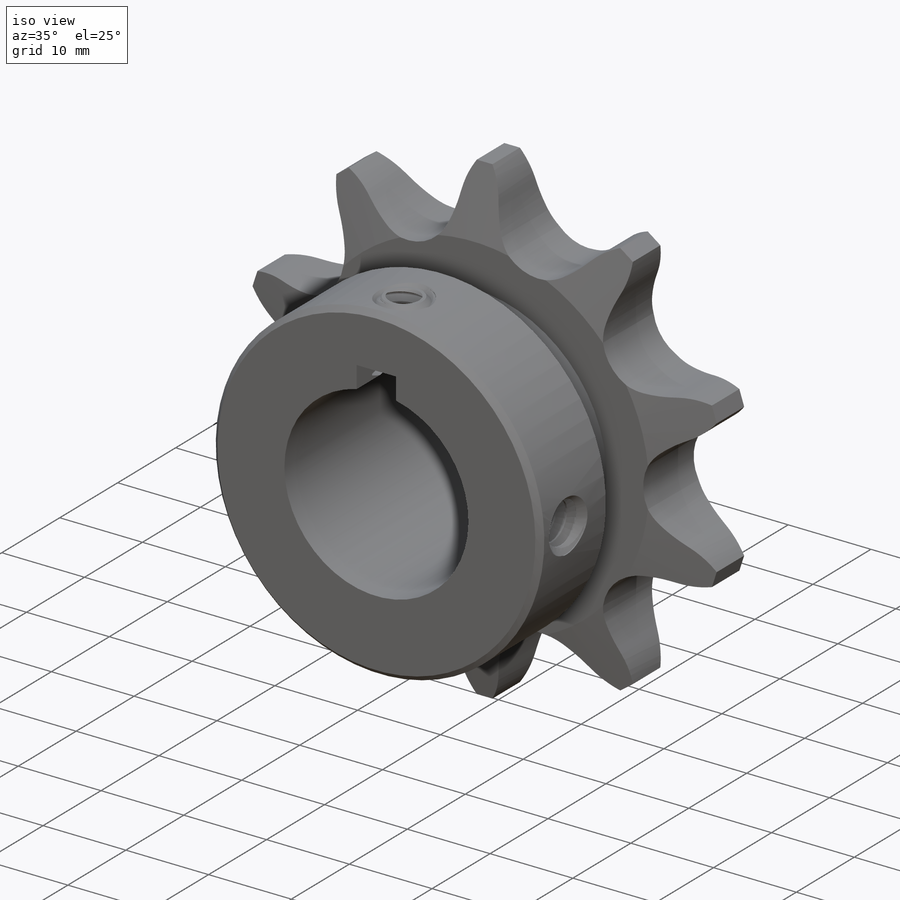
[diagram: iso view]
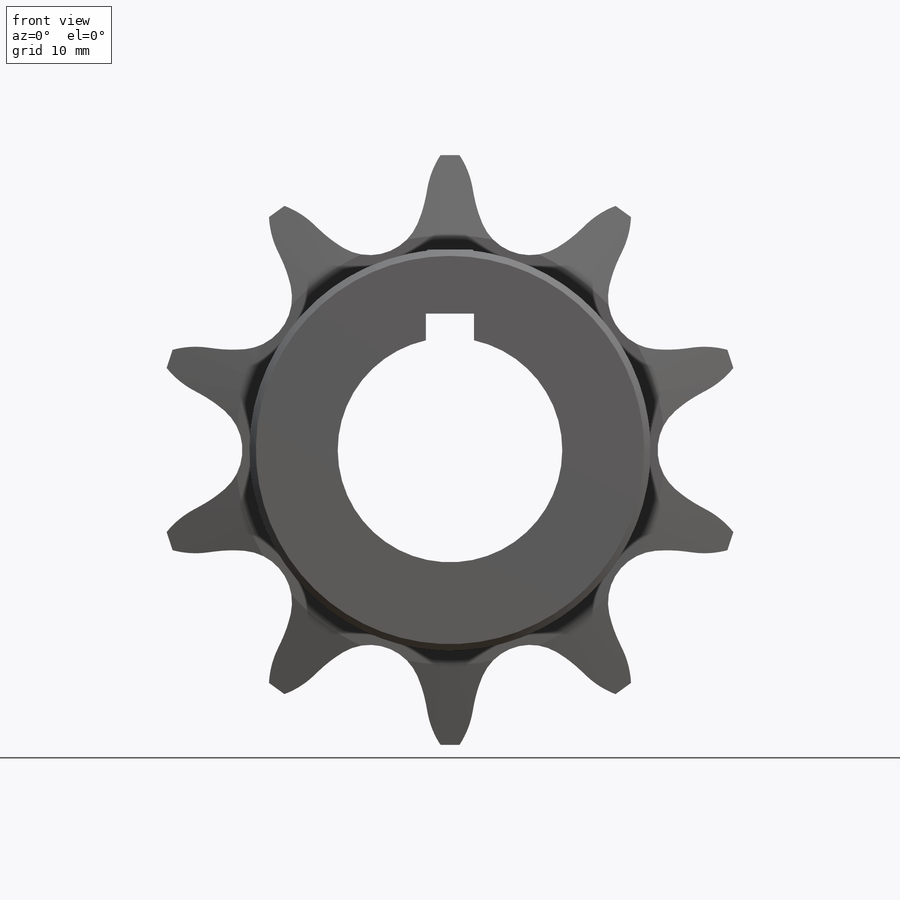
[diagram: front view]
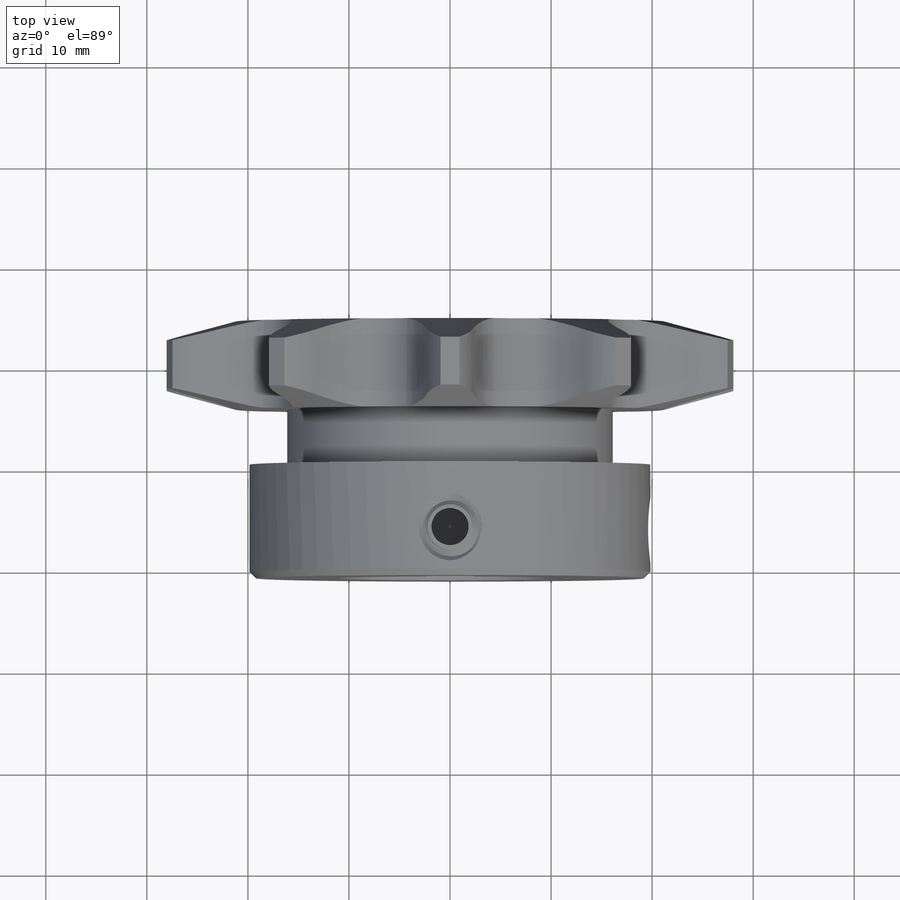
[diagram: top view]
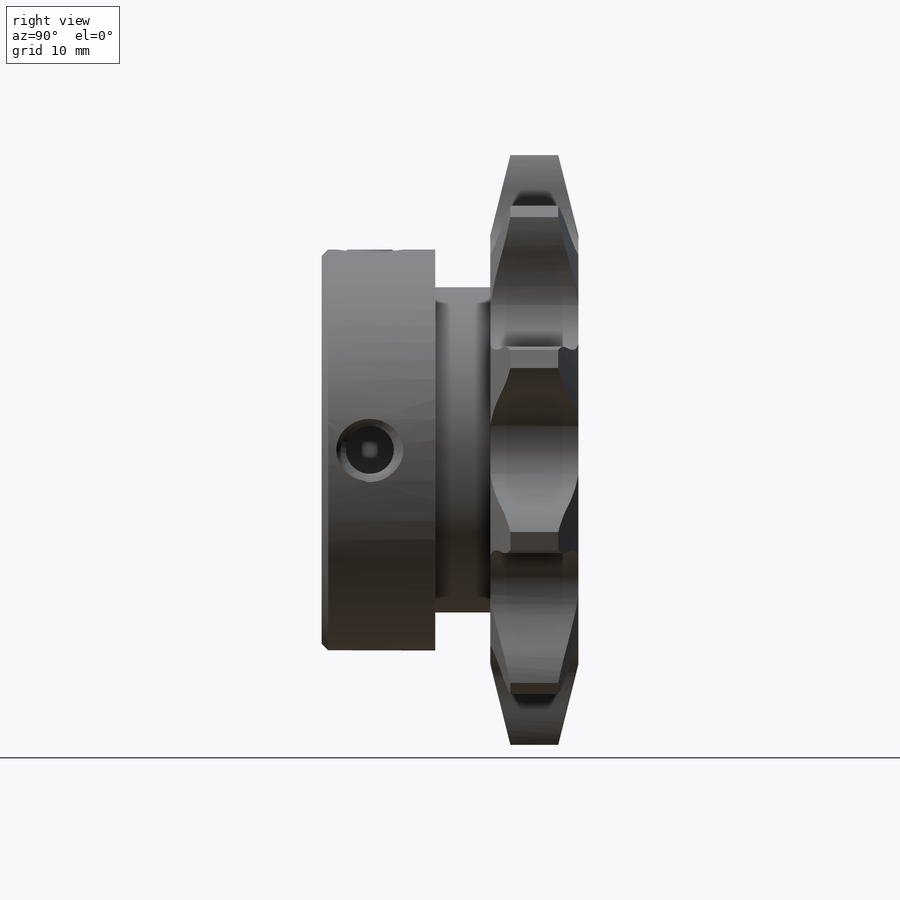
[diagram: right view]
SOLIDWORKS PART (.sldprt)
format: sldprt  version: not decoded by parser v0  size: 1,576,448 bytes
history: native  units: mm
features: sketch x15, cut_extrude x7, pattern_circular x3, revolve x2, helix x2, sweep x2, material x1, extrude x1, cut_revolve x1, plane x1 (+14 scaffold rows collapsed)
feature tree (49):
  scaffold x14  (default folders/planes/origin — collapsed)
  material  "Plain Carbon Steel"
  sketch  "Sketch0"  dims[c1.Dr=10.16mm c1.D1=5.1435mm c1.Ds=10.287mm c1.OD=~43.902322mm c1.R=5.1435mm c1.Pitch=15.875mm c1.W=~4.565886mm c1.D2=~1.697355mm c1.A=41.0deg c2.D2=~20.708272mm c2.360/N=36.0deg c2.M=~2.081609mm c3.D2=~5.058114mm c4.D2=38.0deg c5.D2=~5.058114mm c5.B=20.8deg c5.E=~4.338955mm c5.ab=14.224mm c5.J=4.7625mm c5.ac=8.128mm c6.D2=~4.338955mm c6.B=12.4deg]
  sketch  "Sketch1"  dims[c1.rf=0.635mm c2.rf=0.254mm c2.Bore=20.6375mm c2.OD=43.9166mm c2.t=8.7122mm c2.g=~1.984375mm c2.h=7.9375mm c2.K=18.1102mm c2.MHD=~61.428749mm c2.M=26.543mm c3.K=6.4008mm c3.M=26.543mm c3.MHD=~12.43129mm c3.Width=25.4mm c4.MHD=~32.221226mm]
  revolve  "Revolve1"  Angle=360deg
  cut_extrude  "Cut-Extrude1"  [1 undecoded]
  pattern_circular  "CirPattern1"  Count=10 Angle=360deg Teeth=10
  sketch  "Sketch2"  dims[c1.Bore=22.225mm c1.Hub Dia.=34.925mm c1.OD=58.42mm c2.Hub Dia.=39.6875mm]
  extrude  "Boss-Extrude1"  [1 undecoded]
  sketch  "Sketch3"
  cut_extrude  "Cut-Extrude2"  [1 undecoded]
  sketch  "Sketch4"  dims[C=0.635mm Relief Width=~6.560791mm D2=~5.760376mm D3=~5.445125mm]
  cut_revolve  "Cut-Revolve1"  Angle=360deg
  sketch  "Sketch5"  dims[Key Wd.=4.7625mm Key Ht.=~2.38125mm]
  cut_extrude  "Cut-Extrude3"  [1 undecoded]
  plane  "Plane1"
  sketch  "Sketch6"  dims[Set Screw OD=6.35mm D2=4.7625mm D1=~0.79375mm]
  cut_extrude  "Cut-Extrude4"  [1 undecoded]
  sketch  "Sketch7"
  helix  "Helix/Spiral1"  Pitch=21.11375mm Set Screw Pitch=1.27mm
  sketch  "Sketch8"  dims[D1=1.27mm D2=~0.15875mm]
  sweep  "Cut-Sweep1"
  sketch  "Sketch9"
  cut_extrude  "Cut-Extrude5"  [1 undecoded]
  pattern_circular  "CirPattern2"  Count=2 Angle=90deg
  sketch  "Sketch10"  dims[Set Screw Lg.=6.35mm]
  revolve  "Revolve2"  Angle=360deg
  sketch  "Sketch11"  dims[D1=0.0mm]
  helix  "Helix/Spiral2"  Pitch=7.62mm
  sketch  "Sketch12"
  sweep  "Cut-Sweep2"
  sketch  "Sketch13"  dims[Set Screw Hex=3.175mm]
  cut_extrude  "Cut-Extrude6"  Depth=1.984375mm
  sketch  "Sketch14"
  cut_extrude  "Cut-Extrude7"  [1 undecoded]
  pattern_circular  "CirPattern3"  Count=2 Angle=90deg
decode coverage: 19 of 33 modeling features carry decoded parameters
note: ~ marks probable driven/reference dimensions
note: 7 parameter values undecoded
summary: no parameter record found for 7 features
note: suppression state not decoded; provenance and decode notes live in map.json
